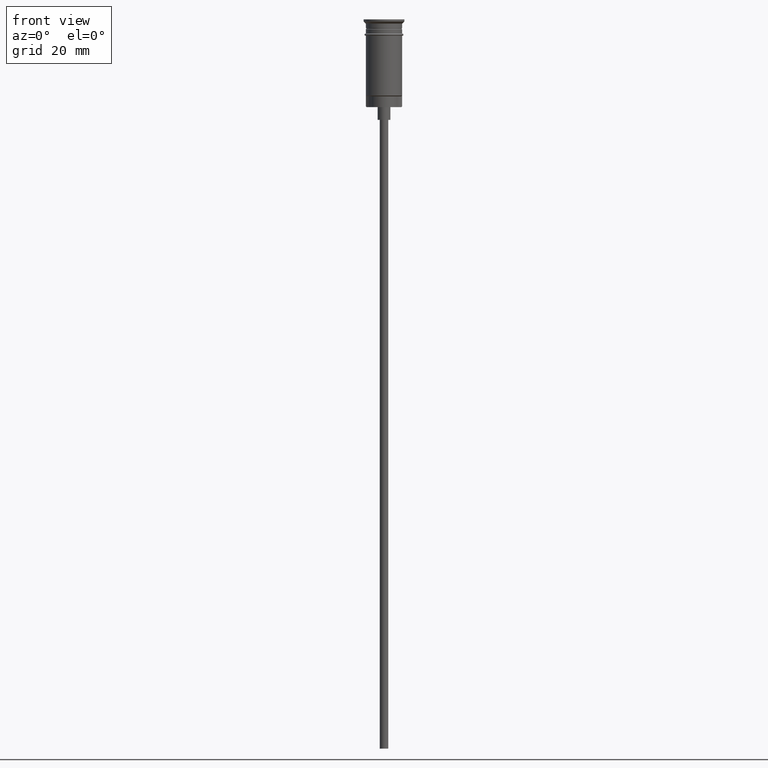
[diagram: clean part render]
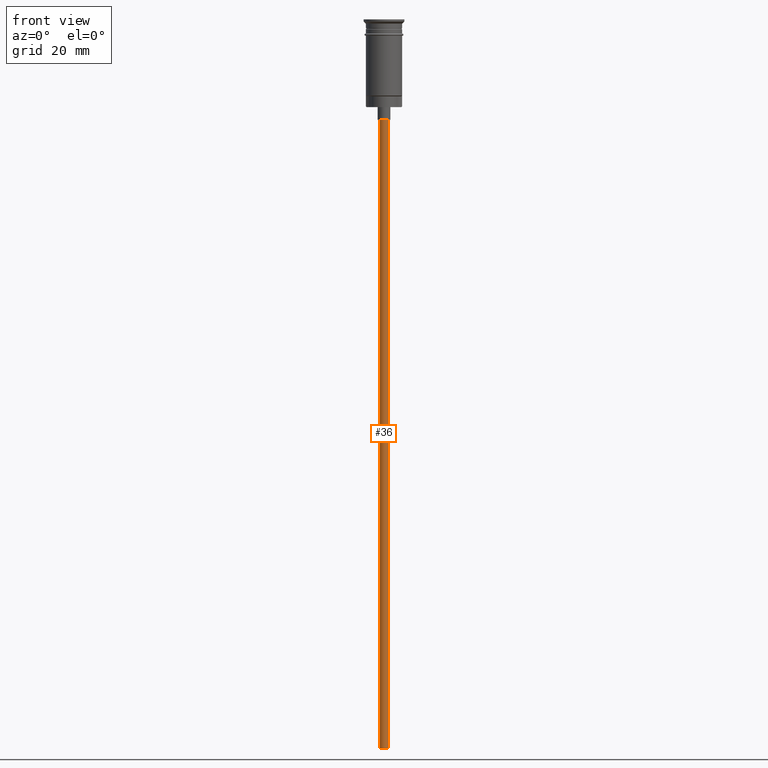
[diagram: same view with one face highlighted and labeled with its STEP entity id]
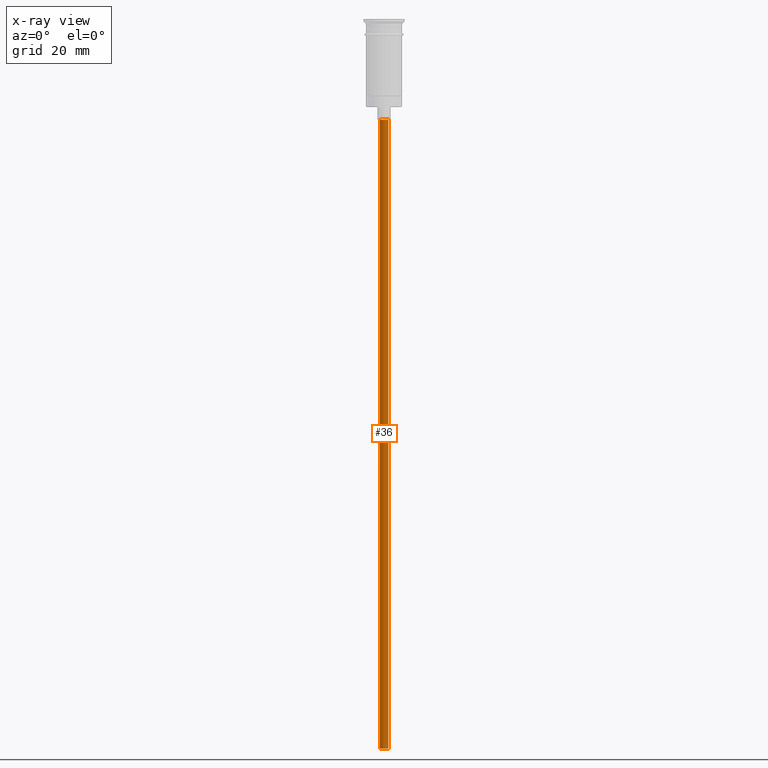
[diagram: x-ray of the same camera — body ghosted, the highlighted face saturated]
A machine part, front view. The second image highlights one B-rep face of the part: STEP entity #36.
The next image is the same camera in x-ray: the body ghosted, the highlighted face saturated — about 0% of this face is hidden behind the body in this view.
In plain terms, the highlighted cylindrical surface (edge-blend (fillet) strip) has radius 1 mm, axis along (-0, -0, 1).
Its self-contained STEP definition (entity closure, byte-faithful):
#1 = ORIENTED_EDGE ( 'NONE', *, *, #1227, .T. ) ;
#6 = VERTEX_POINT ( 'NONE', #151 ) ;
#21 = EDGE_LOOP ( 'NONE', ( #363, #1372, #1, #591 ) ) ;
#36 = ADVANCED_FACE ( 'NONE', ( #546 ), #677, .T. ) ;
#96 = VERTEX_POINT ( 'NONE', #853 ) ;
#113 = DIRECTION ( 'NONE',  ( 0.000000000000000000, 0.000000000000000000, -1.000000000000000000 ) ) ;
#151 = CARTESIAN_POINT ( 'NONE',  ( -0.9999999999999997780, 1.224646799147352961E-16, -170.4999999999999716 ) ) ;
#165 = LINE ( 'NONE', #1026, #277 ) ;
#177 = CIRCLE ( 'NONE', #920, 0.9999999999999997780 ) ;
#277 = VECTOR ( 'NONE', #911, 1000.000000000000000 ) ;
#349 = AXIS2_PLACEMENT_3D ( 'NONE', #1547, #453, #1056 ) ;
#363 = ORIENTED_EDGE ( 'NONE', *, *, #1594, .F. ) ;
#384 = DIRECTION ( 'NONE',  ( -1.000000000000000000, 0.000000000000000000, 0.000000000000000000 ) ) ;
#401 = DIRECTION ( 'NONE',  ( -0.000000000000000000, -0.000000000000000000, 1.000000000000000000 ) ) ;
#407 = CIRCLE ( 'NONE', #349, 0.9999999999999997780 ) ;
#453 = DIRECTION ( 'NONE',  ( 0.000000000000000000, 0.000000000000000000, -1.000000000000000000 ) ) ;
#516 = CARTESIAN_POINT ( 'NONE',  ( -0.9999999999999997780, 1.224646799147352961E-16, -23.49999999999999645 ) ) ;
#546 = FACE_OUTER_BOUND ( 'NONE', #21, .T. ) ;
#591 = ORIENTED_EDGE ( 'NONE', *, *, #1503, .T. ) ;
#677 = CYLINDRICAL_SURFACE ( 'NONE', #735, 0.9999999999999997780 ) ;
#735 = AXIS2_PLACEMENT_3D ( 'NONE', #1528, #1298, #1281 ) ;
#853 = CARTESIAN_POINT ( 'NONE',  ( 0.9999999999999997780, 0.000000000000000000, -170.4999999999999716 ) ) ;
#911 = DIRECTION ( 'NONE',  ( -0.000000000000000000, -0.000000000000000000, 1.000000000000000000 ) ) ;
#920 = AXIS2_PLACEMENT_3D ( 'NONE', #995, #113, #384 ) ;
#968 = VECTOR ( 'NONE', #401, 1000.000000000000000 ) ;
#984 = VERTEX_POINT ( 'NONE', #516 ) ;
#995 = CARTESIAN_POINT ( 'NONE',  ( 0.000000000000000000, 0.000000000000000000, -23.49999999999999645 ) ) ;
#1026 = CARTESIAN_POINT ( 'NONE',  ( -0.9999999999999997780, 1.224646799147352961E-16, -170.4999999999999716 ) ) ;
#1056 = DIRECTION ( 'NONE',  ( -1.000000000000000000, 0.000000000000000000, 0.000000000000000000 ) ) ;
#1227 = EDGE_CURVE ( 'NONE', #96, #1446, #1509, .T. ) ;
#1260 = CARTESIAN_POINT ( 'NONE',  ( 0.9999999999999997780, 0.000000000000000000, -170.4999999999999716 ) ) ;
#1264 = EDGE_CURVE ( 'NONE', #96, #6, #407, .T. ) ;
#1281 = DIRECTION ( 'NONE',  ( 1.000000000000000000, 0.000000000000000000, 0.000000000000000000 ) ) ;
#1298 = DIRECTION ( 'NONE',  ( -0.000000000000000000, -0.000000000000000000, 1.000000000000000000 ) ) ;
#1350 = CARTESIAN_POINT ( 'NONE',  ( 0.9999999999999997780, 0.000000000000000000, -23.49999999999999645 ) ) ;
#1372 = ORIENTED_EDGE ( 'NONE', *, *, #1264, .F. ) ;
#1446 = VERTEX_POINT ( 'NONE', #1350 ) ;
#1503 = EDGE_CURVE ( 'NONE', #1446, #984, #177, .T. ) ;
#1509 = LINE ( 'NONE', #1260, #968 ) ;
#1528 = CARTESIAN_POINT ( 'NONE',  ( 0.000000000000000000, 0.000000000000000000, -170.4999999999999716 ) ) ;
#1547 = CARTESIAN_POINT ( 'NONE',  ( 0.000000000000000000, 0.000000000000000000, -170.4999999999999716 ) ) ;
#1594 = EDGE_CURVE ( 'NONE', #6, #984, #165, .T. ) ;